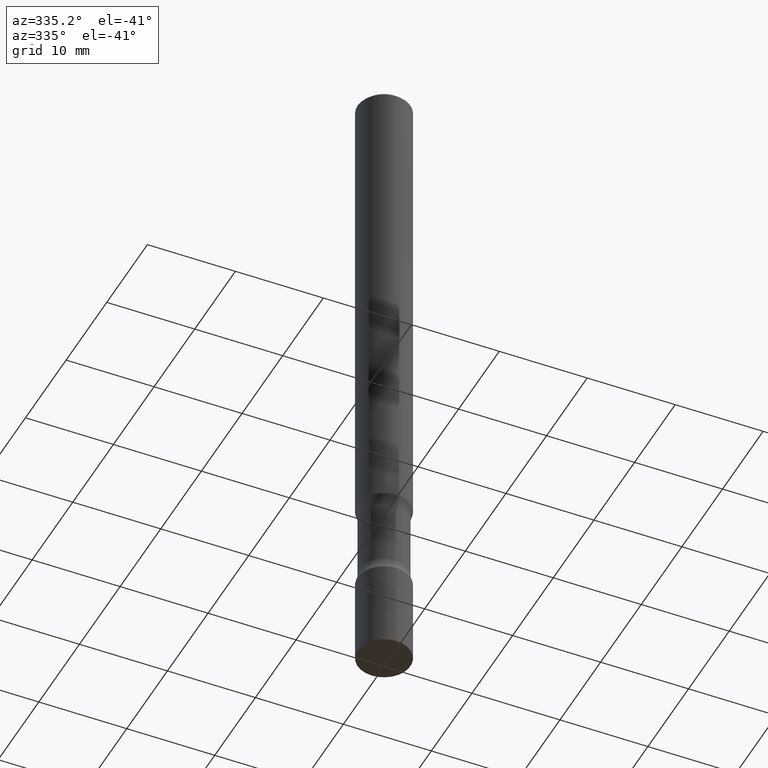
[diagram: clean part render]
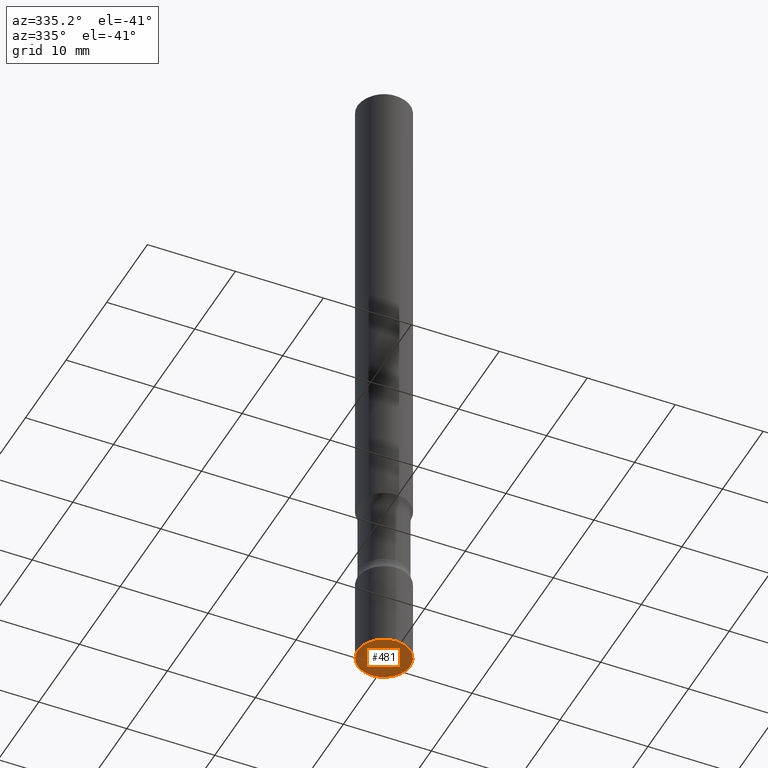
[diagram: same view with one face highlighted and labeled with its STEP entity id]
A machine part, auxiliary view. The second image highlights one B-rep face of the part: STEP entity #481.
In plain terms, the highlighted planar face has unit normal (0, -0, -1).
Its self-contained STEP definition (entity closure, byte-faithful):
#9 = CARTESIAN_POINT ( 'NONE',  ( 7.240846453384315929E-29, -1.028119662195171812E-14, -2.952799999999999869 ) ) ;
#15 = CARTESIAN_POINT ( 'NONE',  ( 8.391509709327467294E-16, 0.1180999999999898797, -2.952800000000000313 ) ) ;
#21 = CIRCLE ( 'NONE', #311, 0.1181000000000001354 ) ;
#37 = FACE_OUTER_BOUND ( 'NONE', #224, .T. ) ;
#50 = CARTESIAN_POINT ( 'NONE',  ( -8.246878922346764763E-16, -0.1181000000000104189, -2.952799999999998981 ) ) ;
#53 = CARTESIAN_POINT ( 'NONE',  ( 7.220980290903470182E-29, -1.030964609733603853E-14, -2.952799999999999869 ) ) ;
#117 = ORIENTED_EDGE ( 'NONE', *, *, #168, .F. ) ;
#124 = DIRECTION ( 'NONE',  ( -2.452196712741911865E-29, 3.481846593725182819E-15, 1.000000000000000000 ) ) ;
#168 = EDGE_CURVE ( 'NONE', #326, #358, #409, .T. ) ;
#171 = AXIS2_PLACEMENT_3D ( 'NONE', #53, #269, #231 ) ;
#185 = AXIS2_PLACEMENT_3D ( 'NONE', #9, #205, #364 ) ;
#191 = PLANE ( 'NONE',  #171 ) ;
#197 = EDGE_CURVE ( 'NONE', #358, #326, #21, .T. ) ;
#205 = DIRECTION ( 'NONE',  ( -2.452196712741911865E-29, 3.481846593725182819E-15, 1.000000000000000000 ) ) ;
#224 = EDGE_LOOP ( 'NONE', ( #502, #117 ) ) ;
#231 = DIRECTION ( 'NONE',  ( 6.982962677686265922E-15, 1.000000000000000000, -3.481846593725182819E-15 ) ) ;
#234 = DIRECTION ( 'NONE',  ( -6.982962677686265922E-15, -1.000000000000000000, 4.626330217890364603E-15 ) ) ;
#269 = DIRECTION ( 'NONE',  ( 2.452196712741911584E-29, -3.481846593725182819E-15, -1.000000000000000000 ) ) ;
#311 = AXIS2_PLACEMENT_3D ( 'NONE', #359, #124, #234 ) ;
#326 = VERTEX_POINT ( 'NONE', #15 ) ;
#358 = VERTEX_POINT ( 'NONE', #50 ) ;
#359 = CARTESIAN_POINT ( 'NONE',  ( 7.240846453384315929E-29, -1.028119662195171812E-14, -2.952799999999999869 ) ) ;
#364 = DIRECTION ( 'NONE',  ( -6.982962677686265922E-15, -1.000000000000000000, 4.626330217890364603E-15 ) ) ;
#409 = CIRCLE ( 'NONE', #185, 0.1181000000000001354 ) ;
#481 = ADVANCED_FACE ( 'NONE', ( #37 ), #191, .T. ) ;
#502 = ORIENTED_EDGE ( 'NONE', *, *, #197, .F. ) ;